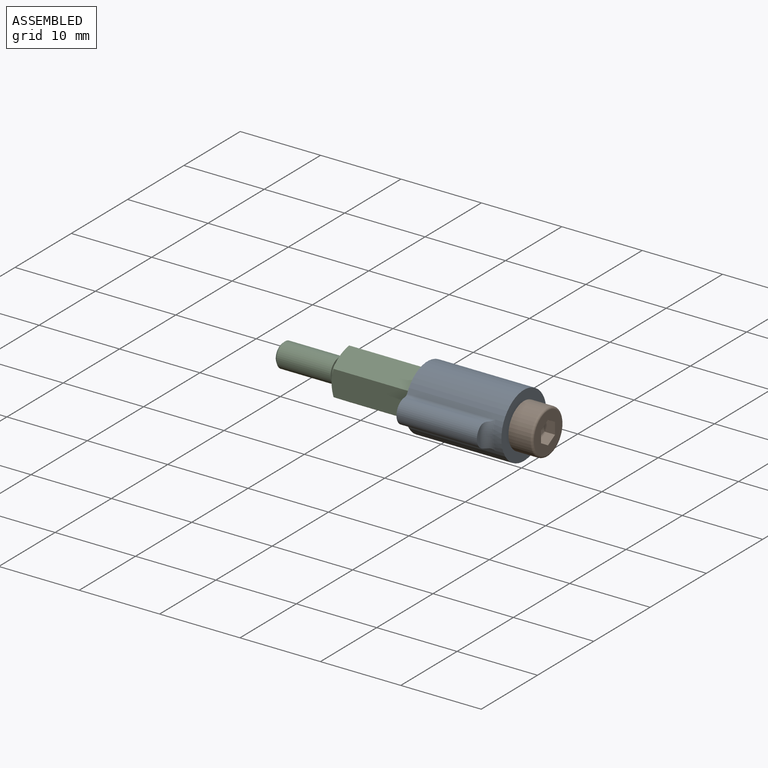
[diagram: assembled view]
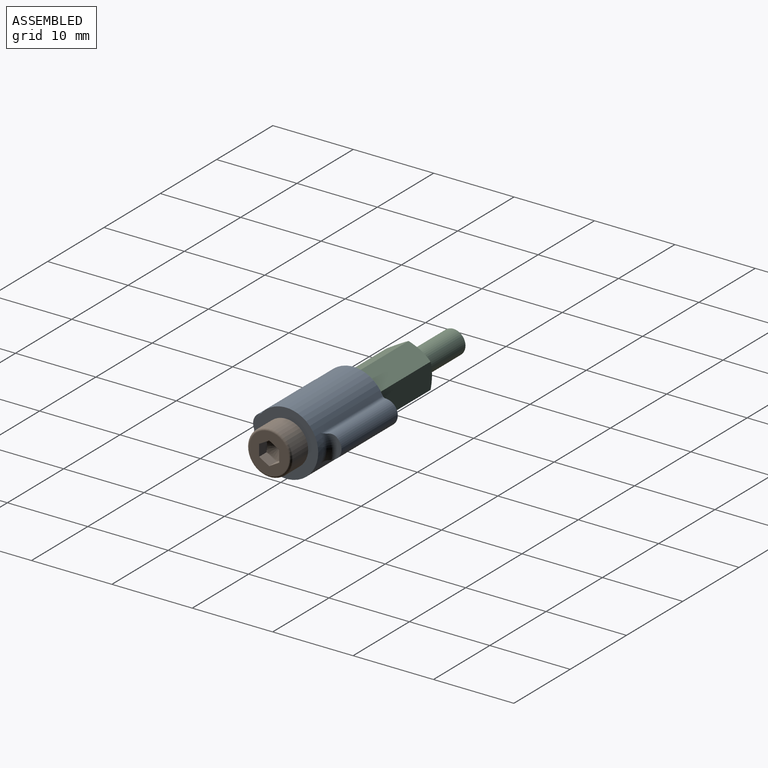
[diagram: assembled view, second angle]
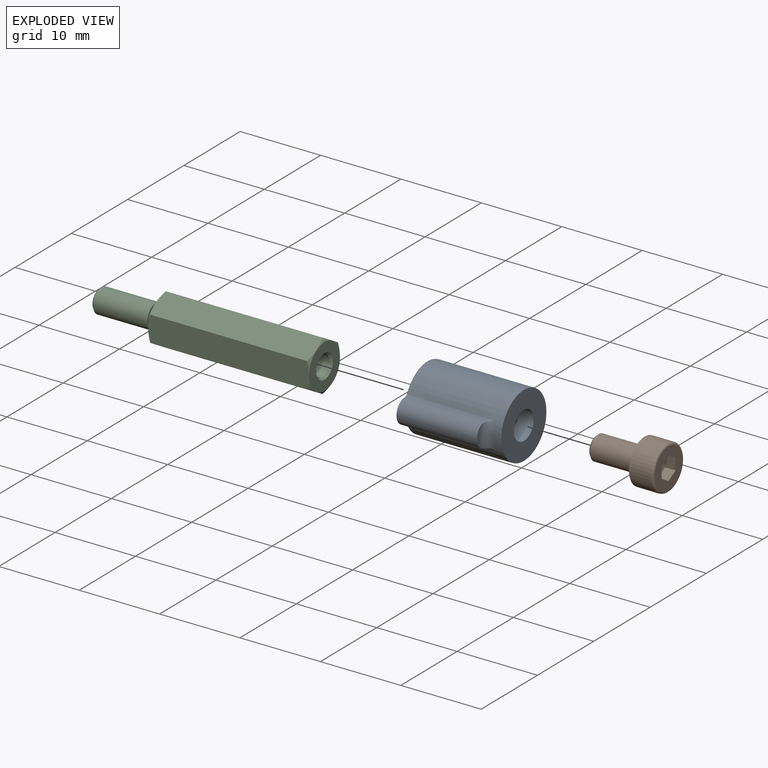
[diagram: exploded view]
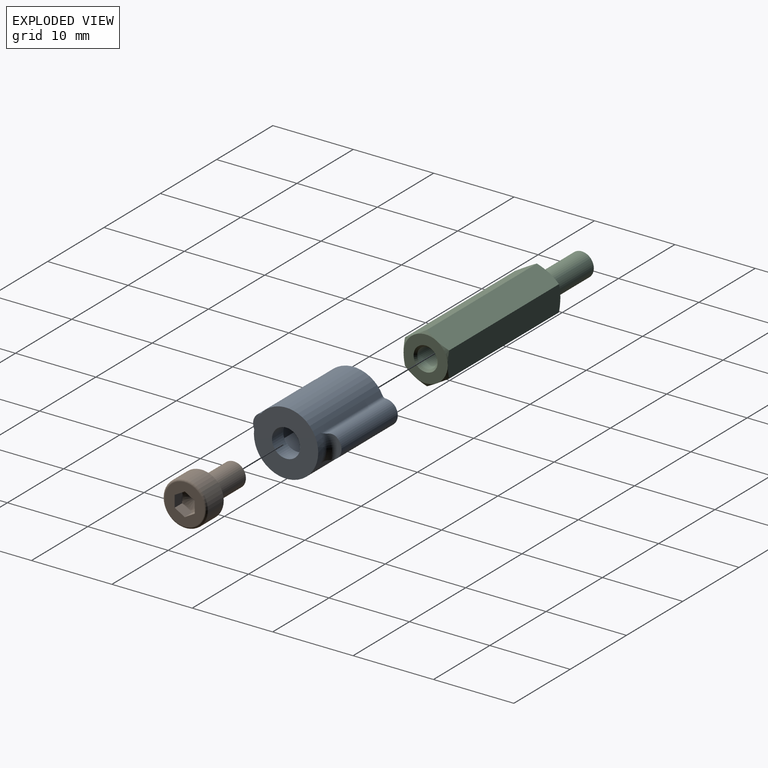
[diagram: exploded view, second angle]
ASSEMBLY  parts=3 mates=2
PART A: 21 faces, bbox 12.4x8x12 mm
  f0: plane 6.7x5.8mm, normal (0,0,1), area 19.5mm2, adj f1,f6,f7,f8,f9,f10,f17
  f1: cylinder r=1.75mm len=3.5mm, axis (0,0,-1), area 22mm2, adj f0,f3
  f2: cylinder r=4mm len=12mm, axis (0,0,-1), area 221.8mm2, adj f3,f11,f13,f14,f16,f18,f19,f20
  f3: plane 8x8mm, normal (0,0,-1), area 40.6mm2, adj f1,f2
  f4: plane 2.48x0.66mm, normal (0,0,-1), area 0.9mm2, adj f12,f20
  f5: plane 2.48x0.66mm, normal (0,0,-1), area 0.9mm2, adj f15,f19
  f6: plane 10x3.35mm, normal (-1,0,0), area 33.5mm2, adj f0,f7,f17,f18
  f7: plane 10x2.9mm, normal (-0.5,0.87,0), area 33.5mm2, adj f0,f6,f8,f18
  f8: plane 10x2.9mm, normal (0.5,0.87,0), area 33.5mm2, adj f0,f7,f9,f18
  f9: plane 10x3.35mm, normal (1,0,0), area 33.5mm2, adj f0,f8,f10,f18
  f10: plane 10x2.9mm, normal (0.5,-0.87,0), area 33.5mm2, adj f0,f9,f17,f18
  f11: cylinder r=0.45mm len=11mm, axis (0,0,-1), area 5.4mm2, adj f2,f12,f18,f20
  f12: cylinder r=1.5mm len=10.31mm, axis (0,0,-1), area 47.3mm2, adj f4,f11,f13,f18,f20
  f13: cylinder r=0.45mm len=11mm, axis (0,0,-1), area 5.4mm2, adj f2,f12,f18,f20
  f14: cylinder r=0.45mm len=11mm, axis (0,0,-1), area 5.4mm2, adj f2,f15,f18,f19
  f15: cylinder r=1.5mm len=10.31mm, axis (0,0,-1), area 47.3mm2, adj f5,f14,f16,f18,f19
  f16: cylinder r=0.45mm len=11mm, axis (0,0,-1), area 5.4mm2, adj f2,f15,f18,f19
  f17: plane 10x2.9mm, normal (-0.5,-0.87,0), area 33.5mm2, adj f0,f6,f10,f18
  f18: plane 11x8mm, normal (0,0,1), area 28.8mm2, adj f2,f6,f7,f8,f9,f10,f11,f12
  f19: torus R=5mm, axis (0,0,1), area 4.8mm2, adj f2,f5,f14,f15,f16
  f20: torus R=5mm, axis (0,0,1), area 4.8mm2, adj f2,f4,f11,f12,f13
PART B: 18 faces, bbox 6x6x9 mm
  f0: cone r=1.36mm half-angle=45deg, axis (0,0,1), area 3.3mm2, adj f1,f16
  f1: cylinder r=1.5mm len=5.26mm, axis (0,0,-1), area 49.6mm2, adj f0,f15
  f2: cone r=1.36mm half-angle=45deg, axis (0,0,1), area 3.3mm2, adj f3,f15
  f3: cylinder r=1.5mm len=3mm, axis (0,0,-1), area 0.5mm2, adj f2,f4
  f4: torus R=1.65mm, axis (0,0,-1), area 2.3mm2, adj f3,f14
  f5: cylinder r=2.75mm len=5.5mm, axis (0,0,-1), area 47.1mm2, adj f6,f14
  f6: torus R=2.48mm, axis (0,0,-1), area 7.2mm2, adj f5,f17
  f7: cone r=0.72mm half-angle=60deg, axis (0,0,1), area 6.2mm2, adj f8,f9,f10,f11,f12,f13
  f8: plane 1.47x1.25mm, normal (0.87,0.5,0), area 2mm2, adj f7,f9,f13,f17
  f9: plane 1.47x1.44mm, normal (0,1,0), area 2mm2, adj f7,f8,f10,f17
  f10: plane 1.47x1.25mm, normal (-0.87,0.5,0), area 2mm2, adj f7,f9,f11,f17
  f11: plane 1.47x1.25mm, normal (-0.87,-0.5,0), area 2mm2, adj f7,f10,f12,f17
  f12: plane 1.44x1.43mm, normal (0,-1,0), area 2mm2, adj f7,f11,f13,f17
  f13: plane 1.47x1.25mm, normal (0.87,-0.5,0), area 2mm2, adj f7,f8,f12,f17
  f14: plane 5.5x5.5mm, normal (0,0,-1), area 15.2mm2, adj f4,f5
  f15: plane 3x3mm, normal (0,0,1), area 2.3mm2, adj f1,f2
  f16: plane 2.46x2.46mm, normal (0,0,-1), area 4.7mm2, adj f0
  f17: plane 4.95x4.95mm, normal (0,0,1), area 13.8mm2, adj f6,f8,f9,f10,f11,f12,f13
PART C: 31 faces, bbox 28x6.4x6.4 mm
  f0: cone r=2.96mm half-angle=60deg, axis (-1,0,0), area 0.5mm2, adj f23,f27,f30
  f1: cone r=2.96mm half-angle=60deg, axis (-1,0,0), area 0.5mm2, adj f23,f25,f28
  f2: cone r=2.96mm half-angle=60deg, axis (1,0,0), area 0.5mm2, adj f24,f27,f30
  f3: cone r=2.96mm half-angle=60deg, axis (1,0,0), area 0.5mm2, adj f24,f25,f28
  f4: cylinder r=1.5mm len=6.73mm, axis (1,0,0), area 63.4mm2, adj f5,f13
  f5: cone r=1.36mm half-angle=45deg, axis (1,0,0), area 3.3mm2, adj f4,f14
  f6: cylinder r=1.23mm len=2.46mm, axis (1,0,0), area 7.7mm2, adj f13,f24
  f7: cone r=0.61mm half-angle=60deg, axis (1,0,0), area 5.5mm2, adj f8
  f8: cylinder r=1.23mm len=4.73mm, axis (-1,0,0), area 36.5mm2, adj f7,f9
  f9: cone r=1.36mm half-angle=45deg, axis (1,0,0), area 3.3mm2, adj f8,f12
  f10: cylinder r=1.23mm len=7.73mm, axis (-1,0,0), area 59.7mm2, adj f11,f12
  f11: cone r=1.36mm half-angle=45deg, axis (1,0,0), area 3.3mm2, adj f10,f23
  f12: plane 3x3mm, normal (-1,0,0), area 2.3mm2, adj f9,f10
  f13: plane 3x3mm, normal (1,0,0), area 2.3mm2, adj f4,f6
  f14: plane 2.46x2.46mm, normal (-1,0,0), area 4.7mm2, adj f5
  f15: cone r=2.96mm half-angle=60deg, axis (1,0,0), area 0.5mm2, adj f24,f26,f27
  f16: cone r=2.96mm half-angle=60deg, axis (1,0,0), area 0.5mm2, adj f24,f25,f26
  f17: cone r=2.96mm half-angle=60deg, axis (1,0,0), area 0.5mm2, adj f24,f28,f29
  f18: cone r=2.96mm half-angle=60deg, axis (1,0,0), area 0.5mm2, adj f24,f29,f30
  f19: cone r=2.96mm half-angle=60deg, axis (-1,0,0), area 0.5mm2, adj f23,f28,f29
  f20: cone r=2.96mm half-angle=60deg, axis (-1,0,0), area 0.5mm2, adj f23,f25,f26
  f21: cone r=2.96mm half-angle=60deg, axis (-1,0,0), area 0.5mm2, adj f23,f26,f27
  f22: cone r=2.96mm half-angle=60deg, axis (-1,0,0), area 0.5mm2, adj f23,f29,f30
  f23: plane 5.5x5.5mm, normal (1,0,0), area 16.7mm2, adj f0,f1,f11,f19,f20,f21,f22
  f24: plane 5.5x5.5mm, normal (-1,0,0), area 19mm2, adj f2,f3,f6,f15,f16,f17,f18
  f25: plane 20x2.75mm, normal (0,-0.5,0.87), area 63mm2, adj f1,f3,f16,f20,f26,f28
  f26: plane 20x3.18mm, normal (0,-1,0), area 63mm2, adj f15,f16,f20,f21,f25,f27
  f27: plane 20x2.75mm, normal (0,-0.5,-0.87), area 63mm2, adj f0,f2,f15,f21,f26,f30
  f28: plane 20x2.75mm, normal (0,0.5,0.87), area 63mm2, adj f1,f3,f17,f19,f25,f29
  f29: plane 20x3.18mm, normal (0,1,0), area 63mm2, adj f17,f18,f19,f22,f28,f30
  f30: plane 20x2.75mm, normal (0,0.5,-0.87), area 63mm2, adj f0,f2,f18,f22,f27,f29
PLACE A rot(axis=(0.58,-0.58,-0.58),120deg) t=(19.89,0.59,-2.49)mm
PLACE B rot(axis=(-0.71,0,-0.71),180deg) t=(19.89,0.59,-2.49)mm
PLACE C t=(-10.11,0.59,-2.49)mm fixed
MATE fastened C.f11 <-> A.f2  axis (1,0,0) through (17.89,0.59,-2.49)mm
MATE fastened A.f2 <-> B.f7  axis (1,0,0) through (19.89,0.59,-2.49)mm
